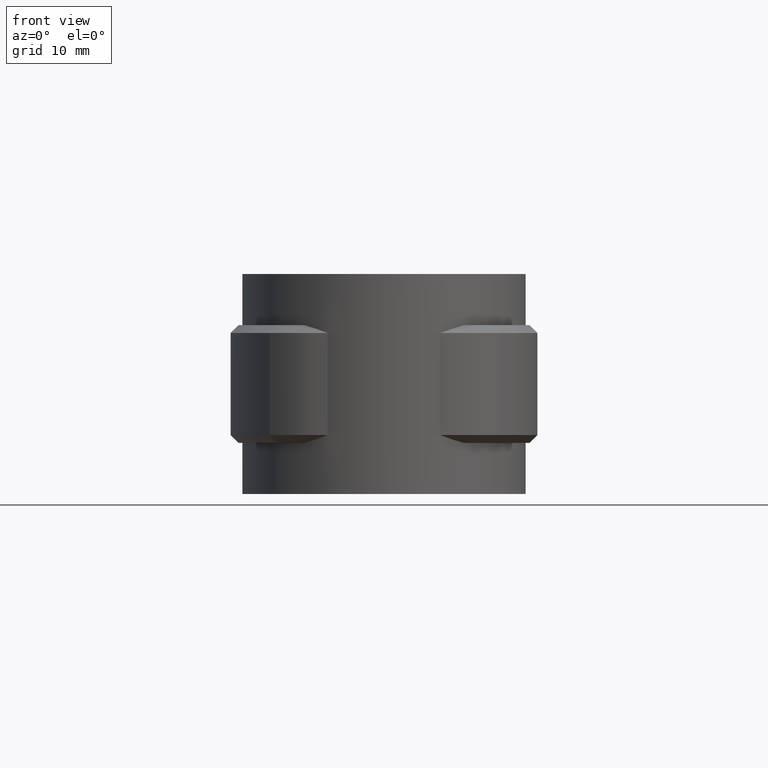
[diagram: clean part render]
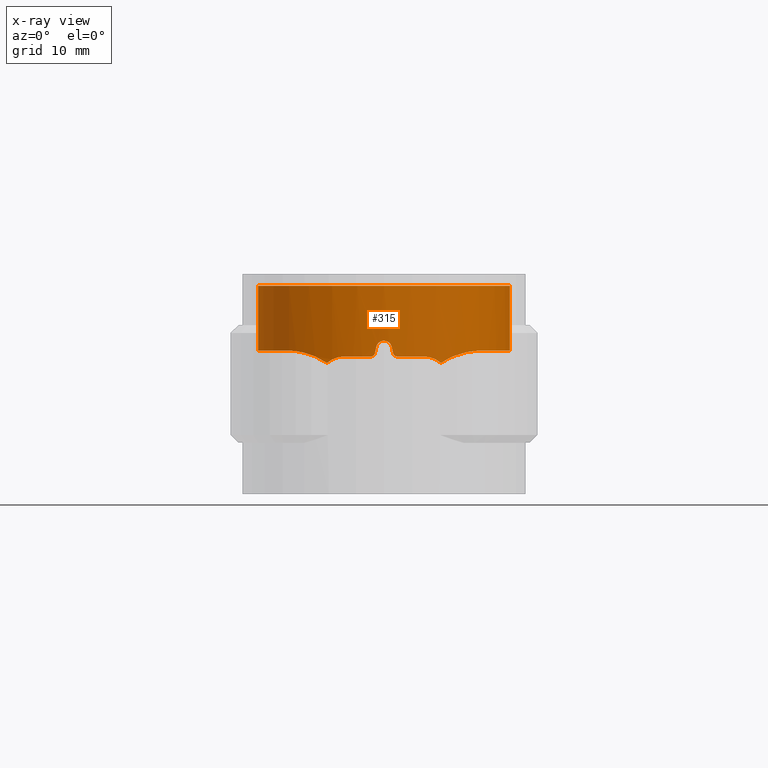
[diagram: x-ray — body ghosted, one internal face saturated and labeled with its STEP entity id]
A machine part, front view, then the same camera in x-ray: the body is ghosted and one INTERNAL B-rep face — a face not visible from any outside direction — is saturated and labeled: STEP entity #315.
In plain terms, the highlighted cylindrical surface (partial cylindrical patch) has radius 16.09 mm, axis along (0, 0, 1).
Its self-contained STEP definition (entity closure, byte-faithful):
#315 = ADVANCED_FACE( '', ( #502 ), #503, .T. );
#502 = FACE_OUTER_BOUND( '', #904, .T. );
#503 = CYLINDRICAL_SURFACE( '', #905, 16.0900000000000 );
#904 = EDGE_LOOP( '', ( #1746, #1747, #1748, #1749, #1750, #1751, #1752, #1753, #1754, #1755, #1756, #1757, #1758, #1759, #1760, #1761 ) );
#905 = AXIS2_PLACEMENT_3D( '', #1762, #1763, #1764 );
#1746 = ORIENTED_EDGE( '', *, *, #4312, .F. );
#1747 = ORIENTED_EDGE( '', *, *, #4313, .F. );
#1748 = ORIENTED_EDGE( '', *, *, #4314, .F. );
#1749 = ORIENTED_EDGE( '', *, *, #4315, .F. );
#1750 = ORIENTED_EDGE( '', *, *, #4316, .F. );
#1751 = ORIENTED_EDGE( '', *, *, #4317, .T. );
#1752 = ORIENTED_EDGE( '', *, *, #4318, .F. );
#1753 = ORIENTED_EDGE( '', *, *, #4319, .F. );
#1754 = ORIENTED_EDGE( '', *, *, #4320, .F. );
#1755 = ORIENTED_EDGE( '', *, *, #4321, .F. );
#1756 = ORIENTED_EDGE( '', *, *, #4322, .F. );
#1757 = ORIENTED_EDGE( '', *, *, #4323, .F. );
#1758 = ORIENTED_EDGE( '', *, *, #4324, .F. );
#1759 = ORIENTED_EDGE( '', *, *, #4325, .F. );
#1760 = ORIENTED_EDGE( '', *, *, #4326, .F. );
#1761 = ORIENTED_EDGE( '', *, *, #4327, .F. );
#1762 = CARTESIAN_POINT( '', ( 0.000000000000000, 0.000000000000000, 0.000000000000000 ) );
#1763 = DIRECTION( '', ( 0.000000000000000, 0.000000000000000, 1.00000000000000 ) );
#1764 = DIRECTION( '', ( 1.00000000000000, -6.12303176911189E-017, 0.000000000000000 ) );
#4312 = EDGE_CURVE( '', #4804, #4805, #4806, .T. );
#4313 = EDGE_CURVE( '', #4807, #4804, #4808, .T. );
#4314 = EDGE_CURVE( '', #4809, #4807, #4810, .T. );
#4315 = EDGE_CURVE( '', #4811, #4809, #4812, .T. );
#4316 = EDGE_CURVE( '', #4813, #4811, #4814, .F. );
#4317 = EDGE_CURVE( '', #4813, #4815, #4816, .T. );
#4318 = EDGE_CURVE( '', #4817, #4815, #4818, .T. );
#4319 = EDGE_CURVE( '', #4819, #4817, #4820, .T. );
#4320 = EDGE_CURVE( '', #4821, #4819, #4822, .T. );
#4321 = EDGE_CURVE( '', #4823, #4821, #4824, .T. );
#4322 = EDGE_CURVE( '', #4825, #4823, #4826, .T. );
#4323 = EDGE_CURVE( '', #4827, #4825, #4828, .T. );
#4324 = EDGE_CURVE( '', #4829, #4827, #4830, .T. );
#4325 = EDGE_CURVE( '', #4831, #4829, #4832, .T. );
#4326 = EDGE_CURVE( '', #4833, #4831, #4834, .T. );
#4327 = EDGE_CURVE( '', #4805, #4833, #4835, .T. );
#4804 = VERTEX_POINT( '', #5626 );
#4805 = VERTEX_POINT( '', #5627 );
#4806 = B_SPLINE_CURVE_WITH_KNOTS( '', 3, ( #5628, #5629, #5630, #5631, #5632, #5633, #5634, #5635, #5636, #5637 ), .UNSPECIFIED., .F., .F., ( 4, 2, 2, 2, 4 ), ( 0.00883853976691619, 0.00949434330834331, 0.0101501468497704, 0.0108059503911976, 0.0114617539326247 ), .UNSPECIFIED. );
#4807 = VERTEX_POINT( '', #5638 );
#4808 = B_SPLINE_CURVE_WITH_KNOTS( '', 3, ( #5639, #5640, #5641, #5642, #5643, #5644, #5645, #5646, #5647, #5648, #5649, #5650 ), .UNSPECIFIED., .F., .F., ( 4, 2, 2, 2, 2, 4 ), ( 4.66016712127983E-005, 0.00322408802680565, 0.00401845961570386, 0.00481283120460208, 0.00560720279350029, 0.00640157438239850 ), .UNSPECIFIED. );
#4809 = VERTEX_POINT( '', #5651 );
#4810 = B_SPLINE_CURVE_WITH_KNOTS( '', 3, ( #5652, #5653, #5654, #5655, #5656, #5657, #5658, #5659, #5660, #5661, #5662, #5663, #5664, #5665, #5666, #5667, #5668, #5669, #5670, #5671, #5672, #5673, #5674, #5675, #5676, #5677, #5678, #5679, #5680, #5681, #5682, #5683, #5684, #5685 ), .UNSPECIFIED., .F., .F., ( 4, 2, 2, 2, 2, 2, 2, 2, 2, 2, 2, 2, 2, 2, 2, 2, 4 ), ( 0.000000000000000, 0.00382526138376944, 0.00478157672971181, 0.00573789207565417, 0.00765052276753890, 0.00956315345942363, 0.0105194688053660, 0.0114757841513084, 0.0153010455350778, 0.0172136762269625, 0.0191263069188472, 0.0210389376107320, 0.0219952529566743, 0.0229515683026167, 0.0267768296863861, 0.0286894603782709, 0.0306020910701556 ), .UNSPECIFIED. );
#4811 = VERTEX_POINT( '', #5686 );
#4812 = LINE( '', #5687, #5688 );
#4813 = VERTEX_POINT( '', #5689 );
#4814 = CIRCLE( '', #5690, 16.0900000000000 );
#4815 = VERTEX_POINT( '', #5691 );
#4816 = LINE( '', #5692, #5693 );
#4817 = VERTEX_POINT( '', #5694 );
#4818 = B_SPLINE_CURVE_WITH_KNOTS( '', 3, ( #5695, #5696, #5697, #5698, #5699, #5700, #5701, #5702, #5703, #5704, #5705, #5706, #5707, #5708, #5709, #5710, #5711, #5712, #5713, #5714, #5715, #5716, #5717, #5718, #5719, #5720, #5721, #5722, #5723, #5724, #5725, #5726 ), .UNSPECIFIED., .F., .F., ( 4, 2, 2, 2, 2, 2, 2, 2, 2, 2, 2, 2, 2, 2, 2, 4 ), ( 0.000186769053910500, 0.00401259568005771, 0.00496905233659451, 0.00592550899313132, 0.00783842230620492, 0.00975133561927853, 0.0116642489323521, 0.0154900755584993, 0.0164465322150361, 0.0174029888715730, 0.0193159021846466, 0.0212288154977202, 0.0221852721542570, 0.0231417288107938, 0.0269675554369410, 0.0307933820630882 ), .UNSPECIFIED. );
#4819 = VERTEX_POINT( '', #5727 );
#4820 = B_SPLINE_CURVE_WITH_KNOTS( '', 3, ( #5728, #5729, #5730, #5731, #5732, #5733, #5734, #5735, #5736, #5737 ), .UNSPECIFIED., .F., .F., ( 4, 2, 2, 2, 4 ), ( 0.0130632303967443, 0.0146516333893524, 0.0162400363819605, 0.0178284393745686, 0.0194168423671767 ), .UNSPECIFIED. );
#4821 = VERTEX_POINT( '', #5738 );
#4822 = B_SPLINE_CURVE_WITH_KNOTS( '', 3, ( #5739, #5740, #5741, #5742, #5743, #5744 ), .UNSPECIFIED., .F., .F., ( 4, 2, 4 ), ( 3.87895961444886E-018, 0.00131543048049187, 0.00263086096098373 ), .UNSPECIFIED. );
#4823 = VERTEX_POINT( '', #5745 );
#4824 = CIRCLE( '', #5746, 16.0900000000000 );
#4825 = VERTEX_POINT( '', #5747 );
#4826 = B_SPLINE_CURVE_WITH_KNOTS( '', 3, ( #5748, #5749, #5750, #5751, #5752, #5753 ), .UNSPECIFIED., .F., .F., ( 4, 2, 4 ), ( 4.33680868994202E-019, 0.000336570482282133, 0.000673140964564266 ), .UNSPECIFIED. );
#4827 = VERTEX_POINT( '', #5754 );
#4828 = ELLIPSE( '', #5755, 73.2989636718306, 16.0900000000000 );
#4829 = VERTEX_POINT( '', #5756 );
#4830 = B_SPLINE_CURVE_WITH_KNOTS( '', 3, ( #5757, #5758, #5759, #5760, #5761, #5762, #5763, #5764, #5765, #5766 ), .UNSPECIFIED., .F., .F., ( 4, 2, 2, 2, 4 ), ( 0.000000000000000, 0.000671730620044260, 0.00134346124008852, 0.00201519186013278, 0.00268692248017704 ), .UNSPECIFIED. );
#4831 = VERTEX_POINT( '', #5767 );
#4832 = ELLIPSE( '', #5768, 73.2989262803470, 16.0900000000000 );
#4833 = VERTEX_POINT( '', #5769 );
#4834 = B_SPLINE_CURVE_WITH_KNOTS( '', 3, ( #5770, #5771, #5772, #5773, #5774, #5775 ), .UNSPECIFIED., .F., .F., ( 4, 2, 4 ), ( 7.78514538903399E-018, 0.000336555369048906, 0.000673110738097805 ), .UNSPECIFIED. );
#4835 = CIRCLE( '', #5776, 16.0900000000000 );
#5626 = CARTESIAN_POINT( '', ( 7.27066833708935, -14.3535877721233, -9.83653133997417 ) );
#5627 = CARTESIAN_POINT( '', ( 5.00000000000000, -15.2934005374868, -9.00000000000000 ) );
#5628 = CARTESIAN_POINT( '', ( 7.27066833708935, -14.3535877721233, -9.83653133997417 ) );
#5629 = CARTESIAN_POINT( '', ( 7.11468088235958, -14.4326016790358, -9.70354844449132 ) );
#5630 = CARTESIAN_POINT( '', ( 6.94839559996088, -14.5136466362885, -9.58523795773057 ) );
#5631 = CARTESIAN_POINT( '', ( 6.59454451108110, -14.6778105583897, -9.37757930778334 ) );
#5632 = CARTESIAN_POINT( '', ( 6.40812202928372, -14.7603195342937, -9.28927341071569 ) );
#5633 = CARTESIAN_POINT( '', ( 6.02577706039922, -14.9204916646540, -9.14748537619145 ) );
#5634 = CARTESIAN_POINT( '', ( 5.82850841832603, -14.9987969442466, -9.09317185074277 ) );
#5635 = CARTESIAN_POINT( '', ( 5.42089376559043, -15.1508854836746, -9.01923102233204 ) );
#5636 = CARTESIAN_POINT( '', ( 5.21111735840752, -15.2243781647679, -8.99999999999997 ) );
#5637 = CARTESIAN_POINT( '', ( 5.00000000000000, -15.2934005374868, -8.99999999999997 ) );
#5638 = CARTESIAN_POINT( '', ( 12.0752994393721, -10.6336843779331, -8.24973772499104 ) );
#5639 = CARTESIAN_POINT( '', ( 12.0752994393721, -10.6336843779332, -8.24973772499104 ) );
#5640 = CARTESIAN_POINT( '', ( 11.3676872205011, -11.4372280158802, -8.27590849637948 ) );
#5641 = CARTESIAN_POINT( '', ( 10.5960571636291, -12.1529155952116, -8.39653295992700 ) );
#5642 = CARTESIAN_POINT( '', ( 9.56309287778549, -12.9422934565628, -8.70632705366434 ) );
#5643 = CARTESIAN_POINT( '', ( 9.35320643317211, -13.0946725831758, -8.77661155504772 ) );
#5644 = CARTESIAN_POINT( '', ( 8.93422234923592, -13.3840424258339, -8.93389442264752 ) );
#5645 = CARTESIAN_POINT( '', ( 8.72430758693700, -13.5216713639647, -9.02111344830313 ) );
#5646 = CARTESIAN_POINT( '', ( 8.30504285032371, -13.7831564817656, -9.21526225288991 ) );
#5647 = CARTESIAN_POINT( '', ( 8.09567908633572, -13.9070144839353, -9.32216013748153 ) );
#5648 = CARTESIAN_POINT( '', ( 7.67959962396101, -14.1410332487049, -9.56001370555437 ) );
#5649 = CARTESIAN_POINT( '', ( 7.47170541415106, -14.2517544232784, -9.69181140429984 ) );
#5650 = CARTESIAN_POINT( '', ( 7.27066833708936, -14.3535877721233, -9.83653133997417 ) );
#5651 = CARTESIAN_POINT( '', ( 5.97970268724985, 14.9375786448841, -8.25156578356560 ) );
#5652 = CARTESIAN_POINT( '', ( 5.97970268724985, 14.9375786448841, -8.25156578356559 ) );
#5653 = CARTESIAN_POINT( '', ( 7.18050547387399, 14.4568820192303, -8.25350219987824 ) );
#5654 = CARTESIAN_POINT( '', ( 8.29987161202147, 13.8431951883344, -8.25389829040347 ) );
#5655 = CARTESIAN_POINT( '', ( 9.60083818657829, 12.9156540669661, -8.25214396542247 ) );
#5656 = CARTESIAN_POINT( '', ( 9.85605266201049, 12.7220151359708, -8.25171924638518 ) );
#5657 = CARTESIAN_POINT( '', ( 10.3563435950208, 12.3181812999350, -8.25087317941542 ) );
#5658 = CARTESIAN_POINT( '', ( 10.6022202598489, 12.1072245214547, -8.25045088744087 ) );
#5659 = CARTESIAN_POINT( '', ( 11.3166753252090, 11.4558456601365, -8.24954812822931 ) );
#5660 = CARTESIAN_POINT( '', ( 11.7627432138569, 10.9969429517159, -8.24976104864156 ) );
#5661 = CARTESIAN_POINT( '', ( 12.5962888143308, 10.0313703104010, -8.25127554661886 ) );
#5662 = CARTESIAN_POINT( '', ( 12.9837623436285, 9.52469677703625, -8.25228402271894 ) );
#5663 = CARTESIAN_POINT( '', ( 13.5205286754012, 8.72845133229438, -8.25307799962964 ) );
#5664 = CARTESIAN_POINT( '', ( 13.6920241940315, 8.45698129331812, -8.25323293463433 ) );
#5665 = CARTESIAN_POINT( '', ( 14.0198345049474, 7.90166435501812, -8.25326623740130 ) );
#5666 = CARTESIAN_POINT( '', ( 14.1759529548510, 7.61798638523472, -8.25314336120227 ) );
#5667 = CARTESIAN_POINT( '', ( 14.9080974833175, 6.18780003944958, -8.25194833719441 ) );
#5668 = CARTESIAN_POINT( '', ( 15.3498494021492, 4.99164914601847, -8.24895859032316 ) );
#5669 = CARTESIAN_POINT( '', ( 15.7976695305431, 3.11982721799641, -8.25060726814773 ) );
#5670 = CARTESIAN_POINT( '', ( 15.9106798545290, 2.47979560799068, -8.25165939629462 ) );
#5671 = CARTESIAN_POINT( '', ( 16.0575415685640, 1.20601760541249, -8.25297087091600 ) );
#5672 = CARTESIAN_POINT( '', ( 16.0925800615113, 0.568772529279280, -8.25323430601314 ) );
#5673 = CARTESIAN_POINT( '', ( 16.0871255570230, -0.706418104801147, -8.25267164489871 ) );
#5674 = CARTESIAN_POINT( '', ( 16.0466352159797, -1.34436363801910, -8.25184491845092 ) );
#5675 = CARTESIAN_POINT( '', ( 15.9277477146231, -2.30182136053256, -8.25061447161764 ) );
#5676 = CARTESIAN_POINT( '', ( 15.8781754717456, -2.62209984160319, -8.25021661072283 ) );
#5677 = CARTESIAN_POINT( '', ( 15.7605048958343, -3.25551060807055, -8.24972809169690 ) );
#5678 = CARTESIAN_POINT( '', ( 15.6924246523377, -3.56906902614823, -8.24966631763209 ) );
#5679 = CARTESIAN_POINT( '', ( 15.3067434871994, -5.12144771919516, -8.25057836017610 ) );
#5680 = CARTESIAN_POINT( '', ( 14.8552286034273, -6.31468423616168, -8.25368184332010 ) );
#5681 = CARTESIAN_POINT( '', ( 13.9580882294293, -8.02970182790707, -8.25323897184126 ) );
#5682 = CARTESIAN_POINT( '', ( 13.6246180457725, -8.58314374422465, -8.25235669390436 ) );
#5683 = CARTESIAN_POINT( '', ( 12.8971606941717, -9.64177470468599, -8.25038022791527 ) );
#5684 = CARTESIAN_POINT( '', ( 12.5021416699676, -10.1489749013675, -8.24952348472624 ) );
#5685 = CARTESIAN_POINT( '', ( 12.0752992766545, -10.6336845627105, -8.24973777531009 ) );
#5686 = CARTESIAN_POINT( '', ( 5.97970268724986, 14.9375786448841, 0.000000000000000 ) );
#5687 = CARTESIAN_POINT( '', ( 5.97970268724985, 14.9375786448841, 0.000000000000000 ) );
#5688 = VECTOR( '', #8162, 1000.00000000000 );
#5689 = CARTESIAN_POINT( '', ( -5.97970268724987, 14.9375786448841, 0.000000000000000 ) );
#5690 = AXIS2_PLACEMENT_3D( '', #8163, #8164, #8165 );
#5691 = CARTESIAN_POINT( '', ( -5.97970268724986, 14.9375786448841, -8.25156578356560 ) );
#5692 = CARTESIAN_POINT( '', ( -5.97970268724986, 14.9375786448841, 0.000000000000000 ) );
#5693 = VECTOR( '', #8166, 1000.00000000000 );
#5694 = CARTESIAN_POINT( '', ( -12.0752994392953, -10.6336843780204, -8.24973772499390 ) );
#5695 = CARTESIAN_POINT( '', ( -12.0752992766544, -10.6336845627104, -8.24973777531000 ) );
#5696 = CARTESIAN_POINT( '', ( -12.9284618955380, -9.66485819834747, -8.24930945628966 ) );
#5697 = CARTESIAN_POINT( '', ( -13.6507783494505, -8.61288705624018, -8.25305525001528 ) );
#5698 = CARTESIAN_POINT( '', ( -14.3943769509658, -7.19669050712475, -8.25346196651496 ) );
#5699 = CARTESIAN_POINT( '', ( -14.5350243347660, -6.90832130956362, -8.25337985265656 ) );
#5700 = CARTESIAN_POINT( '', ( -14.7998434967650, -6.32111289249539, -8.25294153403403 ) );
#5701 = CARTESIAN_POINT( '', ( -14.9241312029666, -6.02178223728129, -8.25258457029922 ) );
#5702 = CARTESIAN_POINT( '', ( -15.2672321021206, -5.11991580461685, -8.25133393879110 ) );
#5703 = CARTESIAN_POINT( '', ( -15.4582051836619, -4.50982899136460, -8.25022888249409 ) );
#5704 = CARTESIAN_POINT( '', ( -15.7666054911190, -3.27243278295538, -8.24948236692772 ) );
#5705 = CARTESIAN_POINT( '', ( -15.8840300053952, -2.64512271590314, -8.25017535030160 ) );
#5706 = CARTESIAN_POINT( '', ( -16.0441254593218, -1.37299731974332, -8.25180614052844 ) );
#5707 = CARTESIAN_POINT( '', ( -16.0864802714570, -0.724469301782889, -8.25265640732406 ) );
#5708 = CARTESIAN_POINT( '', ( -16.0963985416827, 1.20019463426291, -8.25352722102710 ) );
#5709 = CARTESIAN_POINT( '', ( -15.9516064969119, 2.46703260385642, -8.25121238325534 ) );
#5710 = CARTESIAN_POINT( '', ( -15.5804140856136, 4.03014151762852, -8.24979833248212 ) );
#5711 = CARTESIAN_POINT( '', ( -15.4962075478899, 4.34276630603209, -8.24966087466261 ) );
#5712 = CARTESIAN_POINT( '', ( -15.3097799576601, 4.96011141045426, -8.24991170484006 ) );
#5713 = CARTESIAN_POINT( '', ( -15.2077228564156, 5.26457282488196, -8.25024760351951 ) );
#5714 = CARTESIAN_POINT( '', ( -14.8755959483698, 6.16559739238416, -8.25143051236089 ) );
#5715 = CARTESIAN_POINT( '', ( -14.6196602804780, 6.74984362764150, -8.25241075995679 ) );
#5716 = CARTESIAN_POINT( '', ( -14.0395325449838, 7.88583423821078, -8.25337419565592 ) );
#5717 = CARTESIAN_POINT( '', ( -13.7153453837679, 8.43758095083974, -8.25335565092940 ) );
#5718 = CARTESIAN_POINT( '', ( -13.1762447646382, 9.24004960629810, -8.25257369171479 ) );
#5719 = CARTESIAN_POINT( '', ( -12.9875535866865, 9.50341527307773, -8.25219764358065 ) );
#5720 = CARTESIAN_POINT( '', ( -12.5975800578834, 10.0146106616702, -8.25136763677477 ) );
#5721 = CARTESIAN_POINT( '', ( -12.3957039546946, 10.2633687854208, -8.25091328816404 ) );
#5722 = CARTESIAN_POINT( '', ( -11.3524921813337, 11.4735725474019, -8.24900707975936 ) );
#5723 = CARTESIAN_POINT( '', ( -10.4111145261217, 12.3356989375070, -8.25103653700168 ) );
#5724 = CARTESIAN_POINT( '', ( -8.30708213447799, 13.8402731318377, -8.25390309789518 ) );
#5725 = CARTESIAN_POINT( '', ( -7.18047874180030, 14.4568927204193, -8.25350215677005 ) );
#5726 = CARTESIAN_POINT( '', ( -5.97970268724985, 14.9375786448841, -8.25156578356559 ) );
#5727 = CARTESIAN_POINT( '', ( -7.27066833706610, -14.3535877721191, -9.83653133995425 ) );
#5728 = CARTESIAN_POINT( '', ( -7.27066833708551, -14.3535877721252, -9.83653133997694 ) );
#5729 = CARTESIAN_POINT( '', ( -7.66980083793247, -14.1514111398935, -9.54920906742684 ) );
#5730 = CARTESIAN_POINT( '', ( -8.09497458673449, -13.9141569228911, -9.31255946811169 ) );
#5731 = CARTESIAN_POINT( '', ( -8.93372100895136, -13.3910793205379, -8.92411948674665 ) );
#5732 = CARTESIAN_POINT( '', ( -9.35103166483146, -13.1039437067176, -8.77029891922697 ) );
#5733 = CARTESIAN_POINT( '', ( -10.1725972525734, -12.4769146427489, -8.52316594471472 ) );
#5734 = CARTESIAN_POINT( '', ( -10.5780401014394, -12.1355779886724, -8.43012500259682 ) );
#5735 = CARTESIAN_POINT( '', ( -11.3512985152486, -11.4155686465688, -8.30041542275448 ) );
#5736 = CARTESIAN_POINT( '', ( -11.7218002835017, -11.0351076294541, -8.26281175811824 ) );
#5737 = CARTESIAN_POINT( '', ( -12.0752994392953, -10.6336843780204, -8.24973772499389 ) );
#5738 = CARTESIAN_POINT( '', ( -5.00000000000005, -15.2934005374867, -9.00000000000000 ) );
#5739 = CARTESIAN_POINT( '', ( -5.00000000000005, -15.2934005374867, -8.99999999999997 ) );
#5740 = CARTESIAN_POINT( '', ( -5.42302685213400, -15.1550968125902, -8.99999999999997 ) );
#5741 = CARTESIAN_POINT( '', ( -5.82769790999162, -15.0034348304745, -9.07418868764414 ) );
#5742 = CARTESIAN_POINT( '', ( -6.60384651879908, -14.6783626743095, -9.36169738199038 ) );
#5743 = CARTESIAN_POINT( '', ( -6.95499605075203, -14.5134884557432, -9.56741345012235 ) );
#5744 = CARTESIAN_POINT( '', ( -7.27066833707034, -14.3535877721329, -9.83653133995787 ) );
#5745 = CARTESIAN_POINT( '', ( -1.65000000000003, -16.0051741633760, -9.00000000000000 ) );
#5746 = AXIS2_PLACEMENT_3D( '', #8167, #8168, #8169 );
#5747 = CARTESIAN_POINT( '', ( -1.16219512100914, -16.0479719123851, -8.60975609337373 ) );
#5748 = CARTESIAN_POINT( '', ( -1.16219512100915, -16.0479719123851, -8.60975609337372 ) );
#5749 = CARTESIAN_POINT( '', ( -1.18717415572043, -16.0461629291424, -8.72077402987360 ) );
#5750 = CARTESIAN_POINT( '', ( -1.24933708052125, -16.0416701521405, -8.81992892434561 ) );
#5751 = CARTESIAN_POINT( '', ( -1.42675870956230, -16.0268644467821, -8.96157189897338 ) );
#5752 = CARTESIAN_POINT( '', ( -1.53680578638620, -16.0168435429502, -8.99999999999994 ) );
#5753 = CARTESIAN_POINT( '', ( -1.65000000000003, -16.0051741633760, -8.99999999999994 ) );
#5754 = CARTESIAN_POINT( '', ( -0.975610000000025, -16.0603949244064, -7.78048800000004 ) );
#5755 = AXIS2_PLACEMENT_3D( '', #8170, #8171, #8172 );
#5756 = CARTESIAN_POINT( '', ( 0.975609757981813, -16.0603949391082, -7.78048781325256 ) );
#5757 = CARTESIAN_POINT( '', ( 0.975609757981816, -16.0603949391082, -7.78048781325256 ) );
#5758 = CARTESIAN_POINT( '', ( 0.925754360704220, -16.0634234706142, -7.55890835993988 ) );
#5759 = CARTESIAN_POINT( '', ( 0.801993756409708, -16.0709793514082, -7.36098173594529 ) );
#5760 = CARTESIAN_POINT( '', ( 0.447458259411136, -16.0847552796053, -7.07733026727309 ) );
#5761 = CARTESIAN_POINT( '', ( 0.227136479405867, -16.0900000248275, -6.99999961980643 ) );
#5762 = CARTESIAN_POINT( '', ( -0.227139996869687, -16.0899999751724, -7.00000037332922 ) );
#5763 = CARTESIAN_POINT( '', ( -0.447531592522920, -16.0847528103894, -7.07737603096165 ) );
#5764 = CARTESIAN_POINT( '', ( -0.801989314475959, -16.0709791436957, -7.36099077211950 ) );
#5765 = CARTESIAN_POINT( '', ( -0.925754630683115, -16.0634234549680, -7.55890847290776 ) );
#5766 = CARTESIAN_POINT( '', ( -0.975610000000025, -16.0603949244064, -7.78048800000004 ) );
#5767 = CARTESIAN_POINT( '', ( 1.16219499999999, -16.0479719211486, -8.60975599999999 ) );
#5768 = AXIS2_PLACEMENT_3D( '', #8173, #8174, #8175 );
#5769 = CARTESIAN_POINT( '', ( 1.64999999999995, -16.0051741633761, -9.00000000000000 ) );
#5770 = CARTESIAN_POINT( '', ( 1.64999999999995, -16.0051741633761, -8.99999999999995 ) );
#5771 = CARTESIAN_POINT( '', ( 1.53680573434202, -16.0168435483155, -9.00000000048577 ) );
#5772 = CARTESIAN_POINT( '', ( 1.42675685891321, -16.0268645621218, -8.96156781974292 ) );
#5773 = CARTESIAN_POINT( '', ( 1.24935296716543, -16.0416688655042, -8.81994428070039 ) );
#5774 = CARTESIAN_POINT( '', ( 1.18717405312006, -16.0461629367621, -8.72077401609191 ) );
#5775 = CARTESIAN_POINT( '', ( 1.16219499999999, -16.0479719211486, -8.60975599999999 ) );
#5776 = AXIS2_PLACEMENT_3D( '', #8176, #8177, #8178 );
#8162 = DIRECTION( '', ( 0.000000000000000, 0.000000000000000, -1.00000000000000 ) );
#8163 = CARTESIAN_POINT( '', ( 0.000000000000000, 0.000000000000000, 0.000000000000000 ) );
#8164 = DIRECTION( '', ( 0.000000000000000, 0.000000000000000, -1.00000000000000 ) );
#8165 = DIRECTION( '', ( -1.00000000000000, 0.000000000000000, 0.000000000000000 ) );
#8166 = DIRECTION( '', ( 0.000000000000000, 0.000000000000000, -1.00000000000000 ) );
#8167 = CARTESIAN_POINT( '', ( 0.000000000000000, 0.000000000000000, -9.00000000000000 ) );
#8168 = DIRECTION( '', ( 6.12303176911189E-017, -3.05720745347993E-016, -1.00000000000000 ) );
#8169 = DIRECTION( '', ( 0.000000000000000, 1.00000000000000, -3.05720745347993E-016 ) );
#8170 = CARTESIAN_POINT( '', ( 0.000000000000000, 0.000000000000000, -3.44443890776447 ) );
#8171 = DIRECTION( '', ( 0.975609806487711, -1.18038009681476E-016, -0.219511971165610 ) );
#8172 = DIRECTION( '', ( -0.219511971165610, 2.65585237103421E-017, -0.975609806487711 ) );
#8173 = CARTESIAN_POINT( '', ( 0.000000000000000, 0.000000000000000, -3.44444212055030 ) );
#8174 = DIRECTION( '', ( -0.975609781292647, -1.61807527429124E-017, -0.219512083143762 ) );
#8175 = DIRECTION( '', ( 0.219512083143762, 3.64066741594651E-018, -0.975609781292647 ) );
#8176 = CARTESIAN_POINT( '', ( 0.000000000000000, 0.000000000000000, -9.00000000000000 ) );
#8177 = DIRECTION( '', ( 6.12303176911189E-017, -3.05720745347993E-016, -1.00000000000000 ) );
#8178 = DIRECTION( '', ( 0.000000000000000, 1.00000000000000, -3.05720745347993E-016 ) );